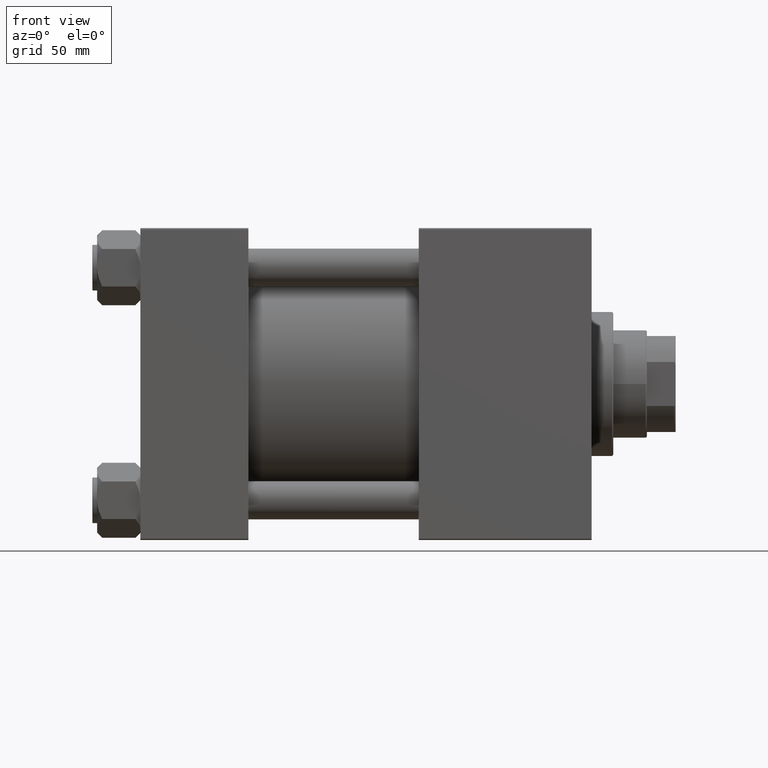
[diagram: clean part render]
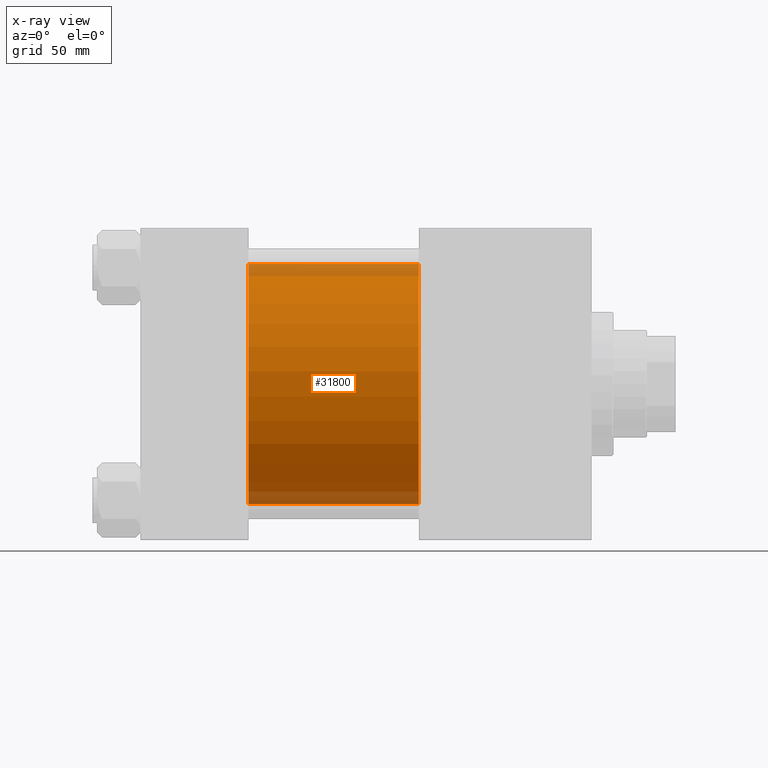
[diagram: x-ray — body ghosted, one internal face saturated and labeled with its STEP entity id]
A machine part, front view, then the same camera in x-ray: the body is ghosted and one INTERNAL B-rep face — a face not visible from any outside direction — is saturated and labeled: STEP entity #31800.
In plain terms, the highlighted cylindrical surface (partial cylindrical patch) has radius 50 mm, axis along (-1, -0, -0).
Its self-contained STEP definition (entity closure, byte-faithful):
#2699 = CARTESIAN_POINT ( 'NONE',  ( 115.9999999999999858, -2.602085213965210642E-15, 0.000000000000000000 ) ) ;
#3843 = DIRECTION ( 'NONE',  ( 1.000000000000000000, 0.000000000000000000, 0.000000000000000000 ) ) ;
#9382 = EDGE_CURVE ( 'NONE', #16776, #22047, #19536, .T. ) ;
#9562 = VERTEX_POINT ( 'NONE', #11686 ) ;
#9705 = AXIS2_PLACEMENT_3D ( 'NONE', #16165, #3843, #47743 ) ;
#10891 = LINE ( 'NONE', #23724, #40166 ) ;
#11686 = CARTESIAN_POINT ( 'NONE',  ( 115.9999999999999858, 3.521148781771555838E-15, -50.00000000000000000 ) ) ;
#16165 = CARTESIAN_POINT ( 'NONE',  ( 115.9999999999999858, -2.602085213965210642E-15, 0.000000000000000000 ) ) ;
#16776 = VERTEX_POINT ( 'NONE', #39635 ) ;
#17642 = EDGE_CURVE ( 'NONE', #46707, #16776, #10891, .T. ) ;
#19536 = CIRCLE ( 'NONE', #38397, 50.00000000000000000 ) ;
#21474 = DIRECTION ( 'NONE',  ( 0.000000000000000000, 0.000000000000000000, -1.000000000000000000 ) ) ;
#22047 = VERTEX_POINT ( 'NONE', #49349 ) ;
#22665 = ORIENTED_EDGE ( 'NONE', *, *, #50536, .T. ) ;
#23724 = CARTESIAN_POINT ( 'NONE',  ( 115.9999999999999858, -2.602085213965210642E-15, 50.00000000000000000 ) ) ;
#26993 = VECTOR ( 'NONE', #41967, 1000.000000000000000 ) ;
#28907 = DIRECTION ( 'NONE',  ( 1.000000000000000000, 0.000000000000000000, 0.000000000000000000 ) ) ;
#30943 = DIRECTION ( 'NONE',  ( 0.000000000000000000, 0.000000000000000000, 1.000000000000000000 ) ) ;
#31356 = ORIENTED_EDGE ( 'NONE', *, *, #17642, .F. ) ;
#31800 = ADVANCED_FACE ( 'NONE', ( #34547 ), #41995, .F. ) ;
#32189 = DIRECTION ( 'NONE',  ( -1.000000000000000000, -0.000000000000000000, -0.000000000000000000 ) ) ;
#33934 = ORIENTED_EDGE ( 'NONE', *, *, #48315, .T. ) ;
#34547 = FACE_OUTER_BOUND ( 'NONE', #36097, .T. ) ;
#36097 = EDGE_LOOP ( 'NONE', ( #33934, #22665, #46623, #31356 ) ) ;
#38397 = AXIS2_PLACEMENT_3D ( 'NONE', #48433, #28907, #21474 ) ;
#38884 = CARTESIAN_POINT ( 'NONE',  ( 115.9999999999999858, 3.521148781771555838E-15, -50.00000000000000000 ) ) ;
#39518 = CARTESIAN_POINT ( 'NONE',  ( 115.9999999999999858, -2.602085213965210642E-15, 50.00000000000000000 ) ) ;
#39635 = CARTESIAN_POINT ( 'NONE',  ( 45.00000000000000000, -2.602085213965210642E-15, 50.00000000000000000 ) ) ;
#40166 = VECTOR ( 'NONE', #32189, 1000.000000000000000 ) ;
#41967 = DIRECTION ( 'NONE',  ( -1.000000000000000000, -0.000000000000000000, -0.000000000000000000 ) ) ;
#41995 = CYLINDRICAL_SURFACE ( 'NONE', #44525, 50.00000000000000000 ) ;
#42215 = LINE ( 'NONE', #38884, #26993 ) ;
#42243 = DIRECTION ( 'NONE',  ( -1.000000000000000000, -0.000000000000000000, -0.000000000000000000 ) ) ;
#44525 = AXIS2_PLACEMENT_3D ( 'NONE', #2699, #42243, #30943 ) ;
#46597 = CIRCLE ( 'NONE', #9705, 50.00000000000000000 ) ;
#46623 = ORIENTED_EDGE ( 'NONE', *, *, #9382, .F. ) ;
#46707 = VERTEX_POINT ( 'NONE', #39518 ) ;
#47743 = DIRECTION ( 'NONE',  ( 0.000000000000000000, 0.000000000000000000, -1.000000000000000000 ) ) ;
#48315 = EDGE_CURVE ( 'NONE', #46707, #9562, #46597, .T. ) ;
#48433 = CARTESIAN_POINT ( 'NONE',  ( 45.00000000000000000, -2.602085213965210642E-15, 0.000000000000000000 ) ) ;
#49349 = CARTESIAN_POINT ( 'NONE',  ( 45.00000000000000000, 3.521148781771555838E-15, -50.00000000000000000 ) ) ;
#50536 = EDGE_CURVE ( 'NONE', #9562, #22047, #42215, .T. ) ;